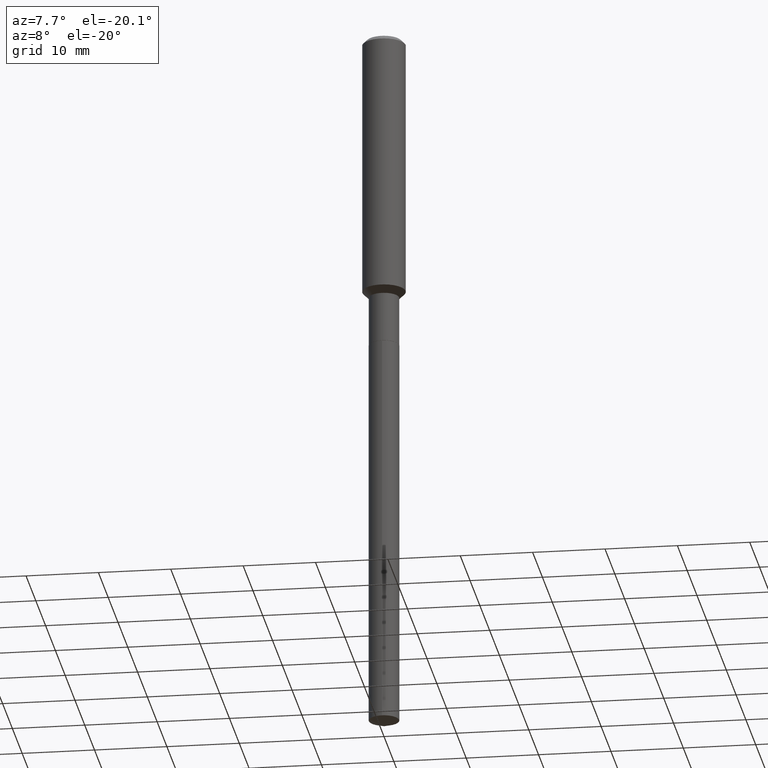
[diagram: clean part render]
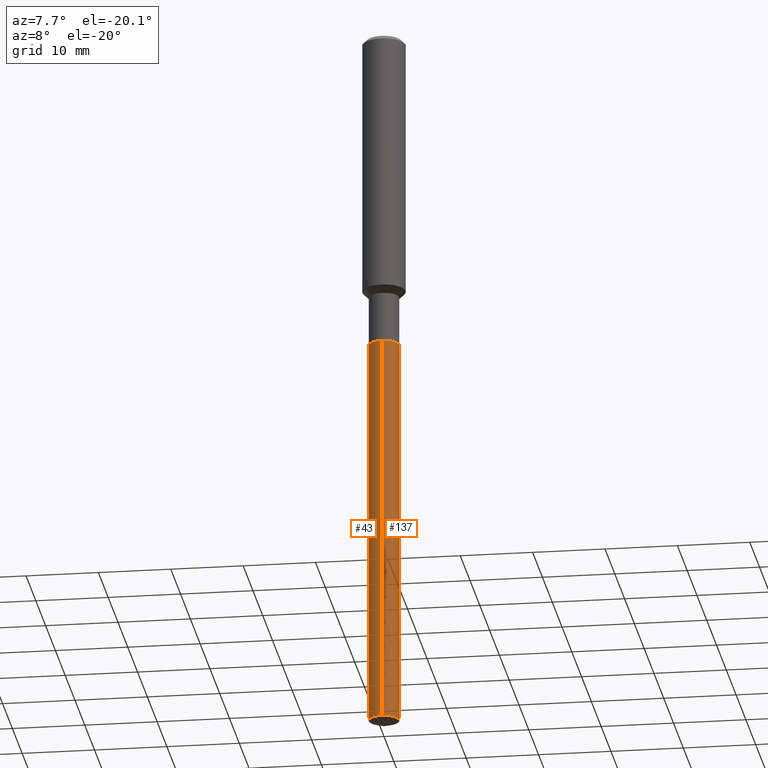
[diagram: same view with one multi-face feature highlighted, each face labeled with its STEP entity id]
A machine part, auxiliary view. The highlighted faces form ONE feature: a constant-radius fillet chain: 2 tangent blend faces with common blend radius 2.1006 mm. The faces share edges in the B-rep.
Their STEP definitions:
[1] entity #137 (Cylinder):
#25 = LINE ( 'NONE', #365, #81 ) ;
#42 = CARTESIAN_POINT ( 'NONE',  ( 5.876188424736979798E-16, 0.08269999999998636775, -3.896423603666645530 ) ) ;
#45 = FACE_OUTER_BOUND ( 'NONE', #334, .T. ) ;
#53 = ORIENTED_EDGE ( 'NONE', *, *, #459, .F. ) ;
#54 = DIRECTION ( 'NONE',  ( -2.445430499061635460E-29, 3.491536196824304965E-15, 1.000000000000000000 ) ) ;
#59 = EDGE_CURVE ( 'NONE', #299, #133, #109, .T. ) ;
#63 = ORIENTED_EDGE ( 'NONE', *, *, #205, .T. ) ;
#64 = DIRECTION ( 'NONE',  ( -2.445430499061635460E-29, 3.491536196824304965E-15, 1.000000000000000000 ) ) ;
#66 = VECTOR ( 'NONE', #385, 39.37007874015748143 ) ;
#81 = VECTOR ( 'NONE', #64, 39.37007874015748143 ) ;
#82 = CARTESIAN_POINT ( 'NONE',  ( 9.528499925293445229E-29, -1.360440837804354766E-14, -3.896423603666644642 ) ) ;
#84 = CARTESIAN_POINT ( 'NONE',  ( 5.876188424736982756E-16, 0.08269999999999390339, -1.744000000000000217 ) ) ;
#102 = CIRCLE ( 'NONE', #184, 0.08269999999999999574 ) ;
#109 = CIRCLE ( 'NONE', #222, 0.08269999999999999574 ) ;
#113 = CARTESIAN_POINT ( 'NONE',  ( -5.774910134446114897E-16, -0.08270000000000608809, -1.743999999999999773 ) ) ;
#115 = LINE ( 'NONE', #156, #66 ) ;
#133 = VERTEX_POINT ( 'NONE', #42 ) ;
#137 = ADVANCED_FACE ( 'NONE', ( #45 ), #302, .T. ) ;
#146 = VERTEX_POINT ( 'NONE', #113 ) ;
#156 = CARTESIAN_POINT ( 'NONE',  ( 5.876188424736454219E-16, 0.08269999999999390339, -1.744000000000000217 ) ) ;
#184 = AXIS2_PLACEMENT_3D ( 'NONE', #397, #54, #463 ) ;
#186 = CARTESIAN_POINT ( 'NONE',  ( 4.264897597986878229E-29, -6.089143454942446628E-15, -1.743999999999999995 ) ) ;
#187 = DIRECTION ( 'NONE',  ( -6.982962677686265922E-15, -1.000000000000000000, 3.303322846026920670E-15 ) ) ;
#205 = EDGE_CURVE ( 'NONE', #133, #292, #115, .T. ) ;
#211 = ORIENTED_EDGE ( 'NONE', *, *, #59, .T. ) ;
#222 = AXIS2_PLACEMENT_3D ( 'NONE', #82, #259, #341 ) ;
#234 = CARTESIAN_POINT ( 'NONE',  ( -5.774910134445587346E-16, -0.08270000000001359597, -3.896423603666644198 ) ) ;
#236 = AXIS2_PLACEMENT_3D ( 'NONE', #186, #378, #187 ) ;
#253 = ORIENTED_EDGE ( 'NONE', *, *, #314, .F. ) ;
#259 = DIRECTION ( 'NONE',  ( -2.445430499061635460E-29, 3.491536196824304965E-15, 1.000000000000000000 ) ) ;
#292 = VERTEX_POINT ( 'NONE', #84 ) ;
#299 = VERTEX_POINT ( 'NONE', #234 ) ;
#302 = CYLINDRICAL_SURFACE ( 'NONE', #236, 0.08269999999999999574 ) ;
#314 = EDGE_CURVE ( 'NONE', #146, #292, #102, .T. ) ;
#334 = EDGE_LOOP ( 'NONE', ( #211, #63, #253, #53 ) ) ;
#341 = DIRECTION ( 'NONE',  ( -6.982962677686265922E-15, -1.000000000000000000, 6.606645692053841341E-15 ) ) ;
#365 = CARTESIAN_POINT ( 'NONE',  ( -5.774910134446114897E-16, -0.08270000000000608809, -1.743999999999999773 ) ) ;
#378 = DIRECTION ( 'NONE',  ( -2.445430499061635460E-29, 3.491536196824304965E-15, 1.000000000000000000 ) ) ;
#385 = DIRECTION ( 'NONE',  ( -2.445430499061635460E-29, 3.491536196824304965E-15, 1.000000000000000000 ) ) ;
#397 = CARTESIAN_POINT ( 'NONE',  ( 4.264897597986878229E-29, -6.089143454942446628E-15, -1.743999999999999995 ) ) ;
#459 = EDGE_CURVE ( 'NONE', #299, #146, #25, .T. ) ;
#463 = DIRECTION ( 'NONE',  ( -6.982962677686265922E-15, -1.000000000000000000, 3.303322846026920670E-15 ) ) ;
[2] entity #43 (Cylinder):
#8 = DIRECTION ( 'NONE',  ( -2.445430499061635460E-29, 3.491536196824304965E-15, 1.000000000000000000 ) ) ;
#23 = AXIS2_PLACEMENT_3D ( 'NONE', #346, #36, #349 ) ;
#25 = LINE ( 'NONE', #365, #81 ) ;
#36 = DIRECTION ( 'NONE',  ( -2.445430499061635460E-29, 3.491536196824304965E-15, 1.000000000000000000 ) ) ;
#42 = CARTESIAN_POINT ( 'NONE',  ( 5.876188424736979798E-16, 0.08269999999998636775, -3.896423603666645530 ) ) ;
#43 = ADVANCED_FACE ( 'NONE', ( #409 ), #97, .T. ) ;
#48 = CIRCLE ( 'NONE', #23, 0.08269999999999999574 ) ;
#51 = CARTESIAN_POINT ( 'NONE',  ( 4.264897597986878229E-29, -6.089143454942446628E-15, -1.743999999999999995 ) ) ;
#58 = ORIENTED_EDGE ( 'NONE', *, *, #348, .F. ) ;
#64 = DIRECTION ( 'NONE',  ( -2.445430499061635460E-29, 3.491536196824304965E-15, 1.000000000000000000 ) ) ;
#66 = VECTOR ( 'NONE', #385, 39.37007874015748143 ) ;
#81 = VECTOR ( 'NONE', #64, 39.37007874015748143 ) ;
#84 = CARTESIAN_POINT ( 'NONE',  ( 5.876188424736982756E-16, 0.08269999999999390339, -1.744000000000000217 ) ) ;
#97 = CYLINDRICAL_SURFACE ( 'NONE', #338, 0.08269999999999999574 ) ;
#99 = ORIENTED_EDGE ( 'NONE', *, *, #459, .T. ) ;
#113 = CARTESIAN_POINT ( 'NONE',  ( -5.774910134446114897E-16, -0.08270000000000608809, -1.743999999999999773 ) ) ;
#115 = LINE ( 'NONE', #156, #66 ) ;
#126 = EDGE_LOOP ( 'NONE', ( #399, #472, #99, #58 ) ) ;
#133 = VERTEX_POINT ( 'NONE', #42 ) ;
#134 = CIRCLE ( 'NONE', #467, 0.08269999999999999574 ) ;
#145 = EDGE_CURVE ( 'NONE', #133, #299, #48, .T. ) ;
#146 = VERTEX_POINT ( 'NONE', #113 ) ;
#156 = CARTESIAN_POINT ( 'NONE',  ( 5.876188424736454219E-16, 0.08269999999999390339, -1.744000000000000217 ) ) ;
#205 = EDGE_CURVE ( 'NONE', #133, #292, #115, .T. ) ;
#234 = CARTESIAN_POINT ( 'NONE',  ( -5.774910134445587346E-16, -0.08270000000001359597, -3.896423603666644198 ) ) ;
#292 = VERTEX_POINT ( 'NONE', #84 ) ;
#299 = VERTEX_POINT ( 'NONE', #234 ) ;
#336 = DIRECTION ( 'NONE',  ( -2.445430499061635460E-29, 3.491536196824304965E-15, 1.000000000000000000 ) ) ;
#338 = AXIS2_PLACEMENT_3D ( 'NONE', #370, #336, #482 ) ;
#346 = CARTESIAN_POINT ( 'NONE',  ( 9.528499925293445229E-29, -1.360440837804354766E-14, -3.896423603666644642 ) ) ;
#348 = EDGE_CURVE ( 'NONE', #292, #146, #134, .T. ) ;
#349 = DIRECTION ( 'NONE',  ( -6.982962677686265922E-15, -1.000000000000000000, 6.606645692053841341E-15 ) ) ;
#365 = CARTESIAN_POINT ( 'NONE',  ( -5.774910134446114897E-16, -0.08270000000000608809, -1.743999999999999773 ) ) ;
#370 = CARTESIAN_POINT ( 'NONE',  ( 4.264897597986878229E-29, -6.089143454942446628E-15, -1.743999999999999995 ) ) ;
#385 = DIRECTION ( 'NONE',  ( -2.445430499061635460E-29, 3.491536196824304965E-15, 1.000000000000000000 ) ) ;
#399 = ORIENTED_EDGE ( 'NONE', *, *, #205, .F. ) ;
#409 = FACE_OUTER_BOUND ( 'NONE', #126, .T. ) ;
#459 = EDGE_CURVE ( 'NONE', #299, #146, #25, .T. ) ;
#467 = AXIS2_PLACEMENT_3D ( 'NONE', #51, #8, #470 ) ;
#470 = DIRECTION ( 'NONE',  ( -6.982962677686265922E-15, -1.000000000000000000, 3.303322846026920670E-15 ) ) ;
#472 = ORIENTED_EDGE ( 'NONE', *, *, #145, .T. ) ;
#482 = DIRECTION ( 'NONE',  ( -6.982962677686265922E-15, -1.000000000000000000, 3.303322846026920670E-15 ) ) ;